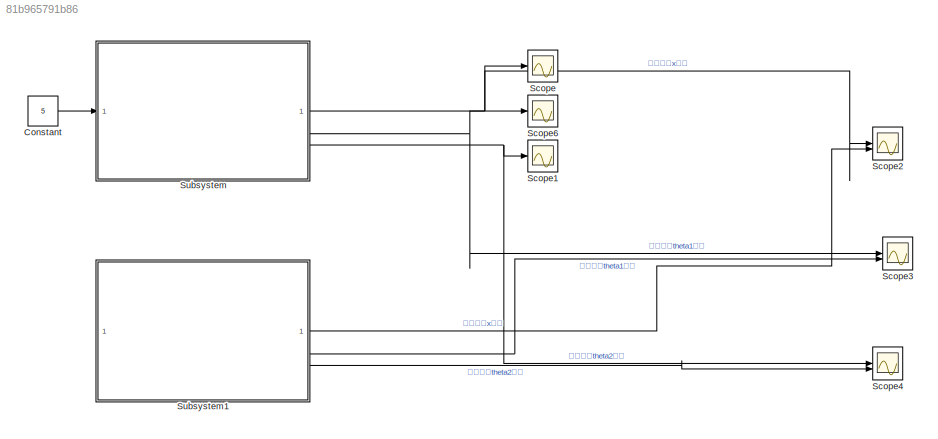
MODEL slx_81b965791b86
KIND model
CONFIG AbsTol = auto
CONFIG EnableMultiTasking = off
CONFIG FixedStep = 0.01
CONFIG MaxStep = auto
CONFIG MinStep = auto
CONFIG RelTol = 1e-3
CONFIG SampleTimeConstraint = Unconstrained
CONFIG SolverName = FixedStepAuto
CONFIG StartTime = 0.0
CONFIG StopTime = 10.0
BLOCK [Constant] Constant
  Value = 5
BLOCK [Scope] Scope
  Floating = off
  NumInputPorts = 1
  ScopeSpecificationString = Simulink.scopes.TimeScopeBlockCfg('CurrentConfiguration', extmgr.ConfigurationSet(extmgr.Configuration('Core','General UI',true),extmgr.Configuration('Core','Source UI',true),extmgr.Configuration('Sources','WiredSimulink',true),extmgr.Configuration('Visuals','Time Domain',true,'SerializedDisplays',{struct('MinYLimReal','-15.6368','MaxYLimReal','140.73122','YLabelReal','','MinYLimMag','0.00000','Ma...<+1392ch>
BLOCK [Scope] Scope1
  Floating = off
  NumInputPorts = 1
  ScopeSpecificationString = Simulink.scopes.TimeScopeBlockCfg('CurrentConfiguration', extmgr.ConfigurationSet(extmgr.Configuration('Core','General UI',true),extmgr.Configuration('Core','Source UI',true),extmgr.Configuration('Sources','WiredSimulink',true,'DataLoggingVariableName','ScopeData1'),extmgr.Configuration('Visuals','Time Domain',true,'SerializedDisplays',{struct('MinYLimReal','-6.50639','MaxYLimReal','0.72293','YLab...<+1428ch>
BLOCK [Scope] Scope2
  Floating = off
  NumInputPorts = 2
  ScopeSpecificationString = Simulink.scopes.TimeScopeBlockCfg('CurrentConfiguration', extmgr.ConfigurationSet(extmgr.Configuration('Core','General UI',true),extmgr.Configuration('Core','Source UI',true),extmgr.Configuration('Sources','WiredSimulink',true,'DataLoggingVariableName','ScopeData2'),extmgr.Configuration('Visuals','Time Domain',true,'SerializedDisplays',{struct('MinYLimReal','-80664870143794080.00000','MaxYLimReal'...<+1589ch>
BLOCK [Scope] Scope3
  Floating = off
  NumInputPorts = 2
  ScopeSpecificationString = Simulink.scopes.TimeScopeBlockCfg('CurrentConfiguration', extmgr.ConfigurationSet(extmgr.Configuration('Core','General UI',true),extmgr.Configuration('Core','Source UI',true),extmgr.Configuration('Sources','WiredSimulink',true,'DataLoggingVariableName','ScopeData3'),extmgr.Configuration('Visuals','Time Domain',true,'SerializedDisplays',{struct('MinYLimReal','-2419946104313823232.00000','MaxYLimRea...<+1609ch>
BLOCK [Scope] Scope4
  Floating = off
  NumInputPorts = 2
  ScopeSpecificationString = Simulink.scopes.TimeScopeBlockCfg('CurrentConfiguration', extmgr.ConfigurationSet(extmgr.Configuration('Core','General UI',true),extmgr.Configuration('Core','Source UI',true),extmgr.Configuration('Sources','WiredSimulink',true,'DataLoggingVariableName','ScopeData4'),extmgr.Configuration('Visuals','Time Domain',true,'SerializedDisplays',{struct('MinYLimReal','-2419946104313823232.00000','MaxYLimRea...<+1609ch>
BLOCK [Scope] Scope6
  Floating = off
  NumInputPorts = 1
  ScopeSpecificationString = Simulink.scopes.TimeScopeBlockCfg('CurrentConfiguration', extmgr.ConfigurationSet(extmgr.Configuration('Core','General UI',true),extmgr.Configuration('Core','Source UI',true),extmgr.Configuration('Sources','WiredSimulink',true,'DataLoggingVariableName','ScopeData6'),extmgr.Configuration('Visuals','Time Domain',true,'SerializedDisplays',{struct('MinYLimReal','-6.50639','MaxYLimReal','0.72293','YLab...<+1428ch>
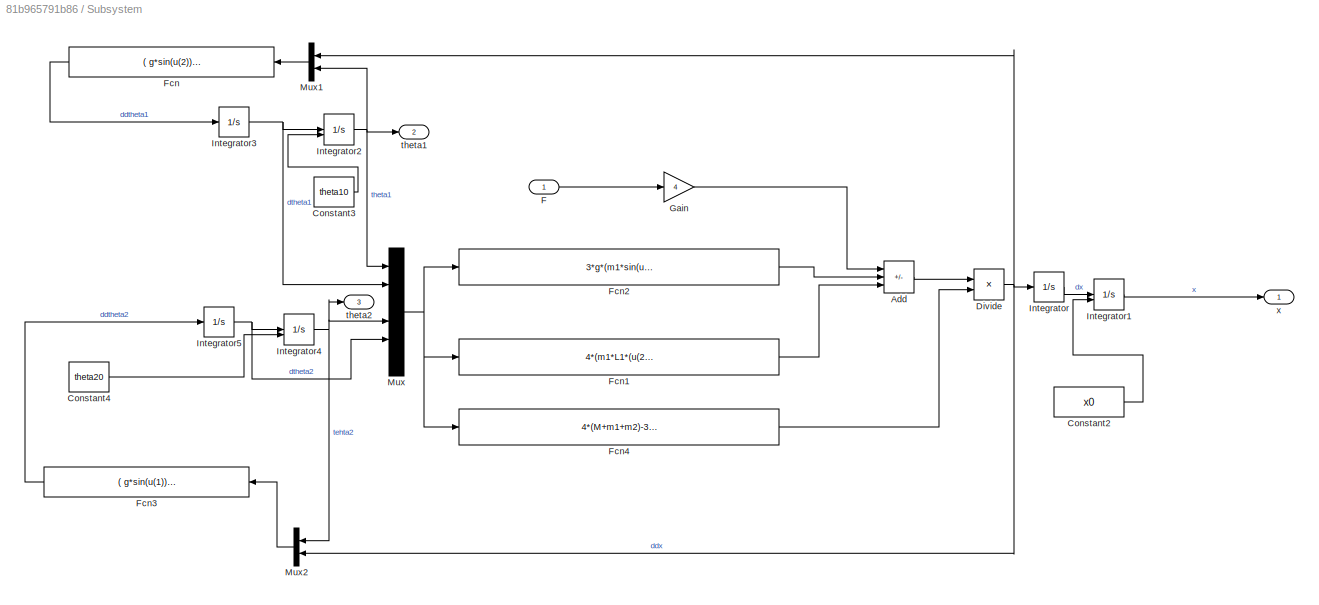
BLOCK [SubSystem] Subsystem
BLOCK [Sum] Subsystem/Add
  IconShape = rectangular
  Inputs = +-+
BLOCK [Constant] Subsystem/Constant2
  Value = x0
BLOCK [Constant] Subsystem/Constant3
  Value = theta10
BLOCK [Constant] Subsystem/Constant4
  Value = theta20
BLOCK [Product] Subsystem/Divide
  Inputs = */
BLOCK [Inport] Subsystem/F
BLOCK [Fcn] Subsystem/Fcn
  Expr = ( g*sin(u(2))-u(1)*cos(u(2)) )/ ( 4*L1 / 3)
BLOCK [Fcn] Subsystem/Fcn1
  Expr = 4*(m1*L1*(u(2)^2)*sin(u(1))+m2*L2*(u(5)^2)*sin(u(4)))
BLOCK [Fcn] Subsystem/Fcn2
  Expr = 3*g*(m1*sin(u(1))*cos(u(1))+m2*sin(u(4))*cos(u(4)))
BLOCK [Fcn] Subsystem/Fcn3
  Expr = ( g*sin(u(1))-u(2)*cos(u(1)) )/ ( 4*L2 / 3)
BLOCK [Fcn] Subsystem/Fcn4
  Expr = 4*(M+m1+m2)-3*(m1*(cos(u(1))^2)+m2*(cos(u(4))^2))
BLOCK [Gain] Subsystem/Gain
  Gain = 4
BLOCK [Integrator] Subsystem/Integrator
BLOCK [Integrator] Subsystem/Integrator1
  InitialConditionSource = external
BLOCK [Integrator] Subsystem/Integrator2
  InitialConditionSource = external
BLOCK [Integrator] Subsystem/Integrator3
BLOCK [Integrator] Subsystem/Integrator4
  InitialConditionSource = external
BLOCK [Integrator] Subsystem/Integrator5
BLOCK [Mux] Subsystem/Mux
  DisplayOption = bar
  Inputs = 6
BLOCK [Mux] Subsystem/Mux1
  DisplayOption = bar
  Inputs = 2
BLOCK [Mux] Subsystem/Mux2
  DisplayOption = bar
  Inputs = 2
BLOCK [Outport] Subsystem/theta1
  Port = 2
BLOCK [Outport] Subsystem/theta2
  Port = 3
BLOCK [Outport] Subsystem/x
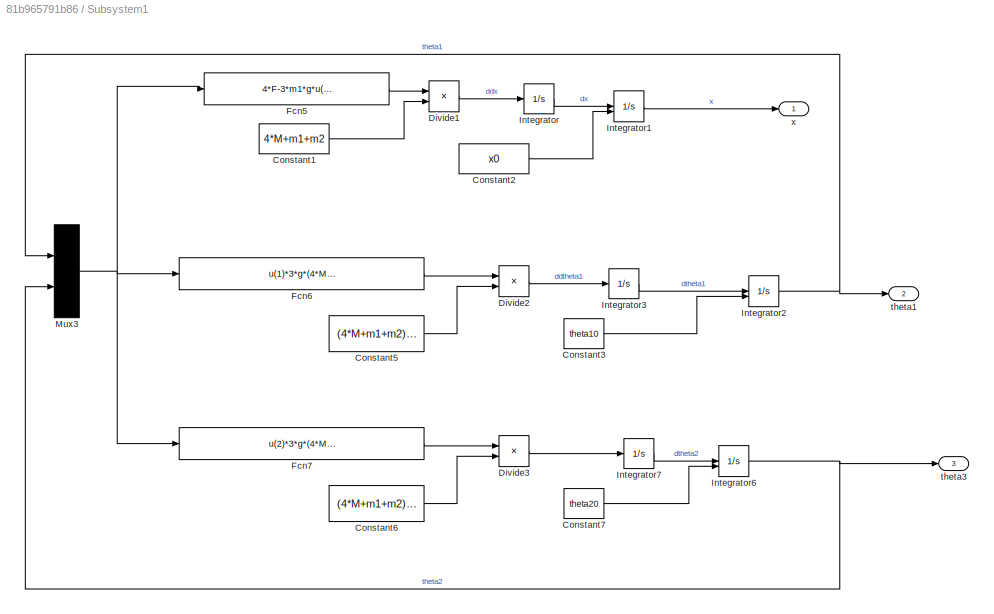
BLOCK [SubSystem] Subsystem1
BLOCK [Constant] Subsystem1/Constant1
  Value = 4*M+m1+m2
BLOCK [Constant] Subsystem1/Constant2
  Value = x0
BLOCK [Constant] Subsystem1/Constant3
  Value = theta10
BLOCK [Constant] Subsystem1/Constant5
  Value = (4*M+m1+m2)*4*L1
BLOCK [Constant] Subsystem1/Constant6
  Value = (4*M+m1+m2)*4*L2
BLOCK [Constant] Subsystem1/Constant7
  Value = theta20
BLOCK [Product] Subsystem1/Divide1
  Inputs = */
BLOCK [Product] Subsystem1/Divide2
  Inputs = */
BLOCK [Product] Subsystem1/Divide3
  Inputs = */
BLOCK [Fcn] Subsystem1/Fcn5
  Expr = 4*F-3*m1*g*u(1)-4*F-3*m2*g*u(2)
BLOCK [Fcn] Subsystem1/Fcn6
  Expr = u(1)*3*g*(4*M+4*m1+m2)+u(2)*9*m2*g-12*F
BLOCK [Fcn] Subsystem1/Fcn7
  Expr = u(2)*3*g*(4*M+m1+4*m2)+u(1)*9*m1*g-12*F
BLOCK [Integrator] Subsystem1/Integrator
BLOCK [Integrator] Subsystem1/Integrator1
  InitialConditionSource = external
BLOCK [Integrator] Subsystem1/Integrator2
  InitialConditionSource = external
BLOCK [Integrator] Subsystem1/Integrator3
BLOCK [Integrator] Subsystem1/Integrator6
  InitialConditionSource = external
BLOCK [Integrator] Subsystem1/Integrator7
BLOCK [Mux] Subsystem1/Mux3
  DisplayOption = bar
  Inputs = 2
BLOCK [Outport] Subsystem1/theta1
  Port = 2
BLOCK [Outport] Subsystem1/theta3
  Port = 3
BLOCK [Outport] Subsystem1/x
LINE Constant:1 -> Subsystem:1
LINE Subsystem/Add:1 -> Subsystem/Divide:1
LINE Subsystem/Constant2:1 -> Subsystem/Integrator1:2
LINE Subsystem/Constant3:1 -> Subsystem/Integrator2:2
LINE Subsystem/Constant4:1 -> Subsystem/Integrator4:2
NET Subsystem/Divide:1 -> Subsystem/Integrator:1, Subsystem/Mux1:1, Subsystem/Mux2:2
LINE Subsystem/F:1 -> Subsystem/Gain:1
LINE Subsystem/Fcn1:1 -> Subsystem/Add:3
LINE Subsystem/Fcn2:1 -> Subsystem/Add:2
LINE Subsystem/Fcn3:1 -> Subsystem/Integrator5:1
LINE Subsystem/Fcn4:1 -> Subsystem/Divide:2
LINE Subsystem/Fcn:1 -> Subsystem/Integrator3:1
LINE Subsystem/Gain:1 -> Subsystem/Add:1
LINE Subsystem/Integrator1:1 -> Subsystem/x:1
NET Subsystem/Integrator2:1 -> Subsystem/Mux1:2, Subsystem/Mux:1, Subsystem/theta1:1
NET Subsystem/Integrator3:1 -> Subsystem/Integrator2:1, Subsystem/Mux:2
NET Subsystem/Integrator4:1 -> Subsystem/Mux2:1, Subsystem/Mux:4, Subsystem/theta2:1
NET Subsystem/Integrator5:1 -> Subsystem/Integrator4:1, Subsystem/Mux:5
LINE Subsystem/Integrator:1 -> Subsystem/Integrator1:1
LINE Subsystem/Mux1:1 -> Subsystem/Fcn:1
LINE Subsystem/Mux2:1 -> Subsystem/Fcn3:1
NET Subsystem/Mux:1 -> Subsystem/Fcn1:1, Subsystem/Fcn2:1, Subsystem/Fcn4:1
LINE Subsystem1/Constant1:1 -> Subsystem1/Divide1:2
LINE Subsystem1/Constant2:1 -> Subsystem1/Integrator1:2
LINE Subsystem1/Constant3:1 -> Subsystem1/Integrator2:2
LINE Subsystem1/Constant5:1 -> Subsystem1/Divide2:2
LINE Subsystem1/Constant6:1 -> Subsystem1/Divide3:2
LINE Subsystem1/Constant7:1 -> Subsystem1/Integrator6:2
LINE Subsystem1/Divide1:1 -> Subsystem1/Integrator:1
LINE Subsystem1/Divide2:1 -> Subsystem1/Integrator3:1
LINE Subsystem1/Divide3:1 -> Subsystem1/Integrator7:1
LINE Subsystem1/Fcn5:1 -> Subsystem1/Divide1:1
LINE Subsystem1/Fcn6:1 -> Subsystem1/Divide2:1
LINE Subsystem1/Fcn7:1 -> Subsystem1/Divide3:1
LINE Subsystem1/Integrator1:1 -> Subsystem1/x:1
NET Subsystem1/Integrator2:1 -> Subsystem1/Mux3:1, Subsystem1/theta1:1
LINE Subsystem1/Integrator3:1 -> Subsystem1/Integrator2:1
NET Subsystem1/Integrator6:1 -> Subsystem1/Mux3:2, Subsystem1/theta3:1
LINE Subsystem1/Integrator7:1 -> Subsystem1/Integrator6:1
LINE Subsystem1/Integrator:1 -> Subsystem1/Integrator1:1
NET Subsystem1/Mux3:1 -> Subsystem1/Fcn5:1, Subsystem1/Fcn6:1, Subsystem1/Fcn7:1
LINE Subsystem1:1 -> Scope2:2
LINE Subsystem1:2 -> Scope3:2
LINE Subsystem1:3 -> Scope4:2
NET Subsystem:1 -> Scope2:1, Scope:1
NET Subsystem:2 -> Scope3:1, Scope6:1
NET Subsystem:3 -> Scope1:1, Scope4:1
note: NET lines group one-source signal fan-out (src -> all destinations, sorted); 1:1 wires keep LINE
